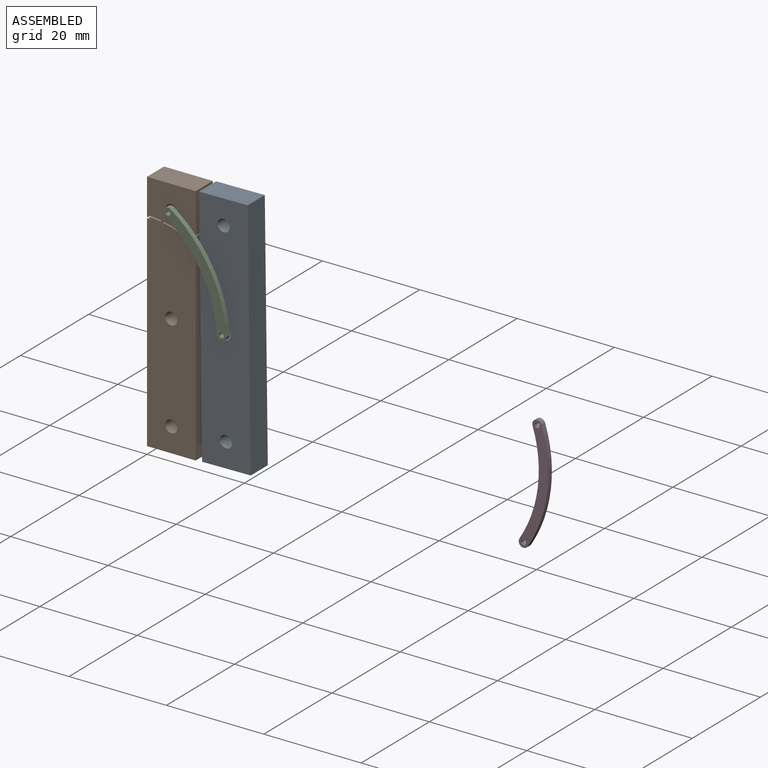
[diagram: assembled view]
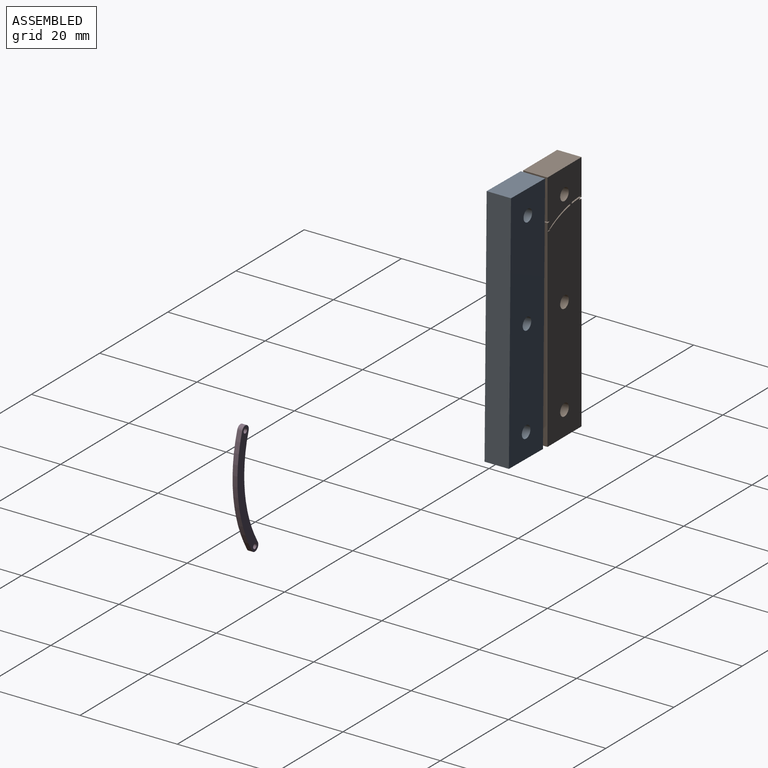
[diagram: assembled view, second angle]
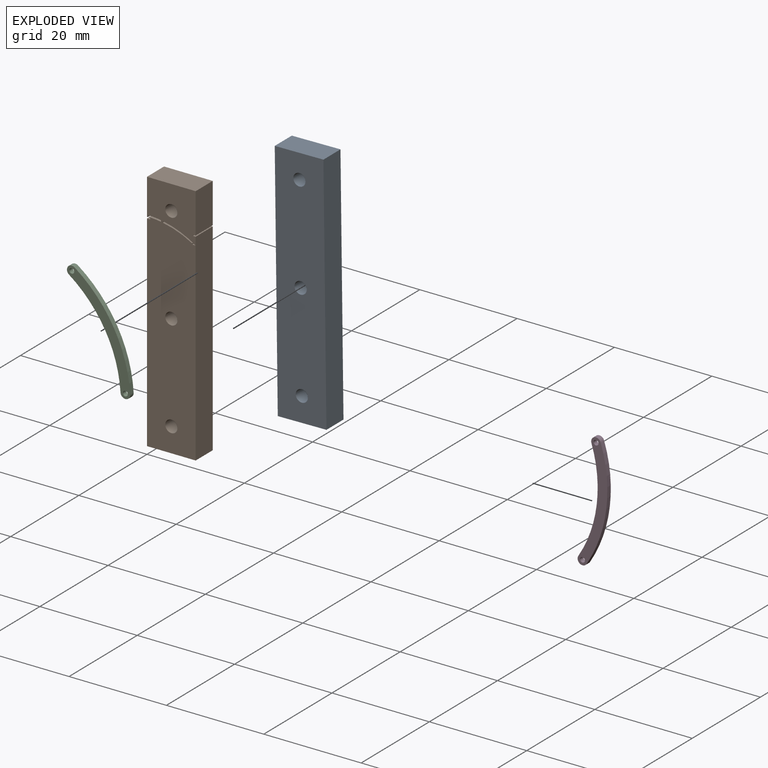
[diagram: exploded view]
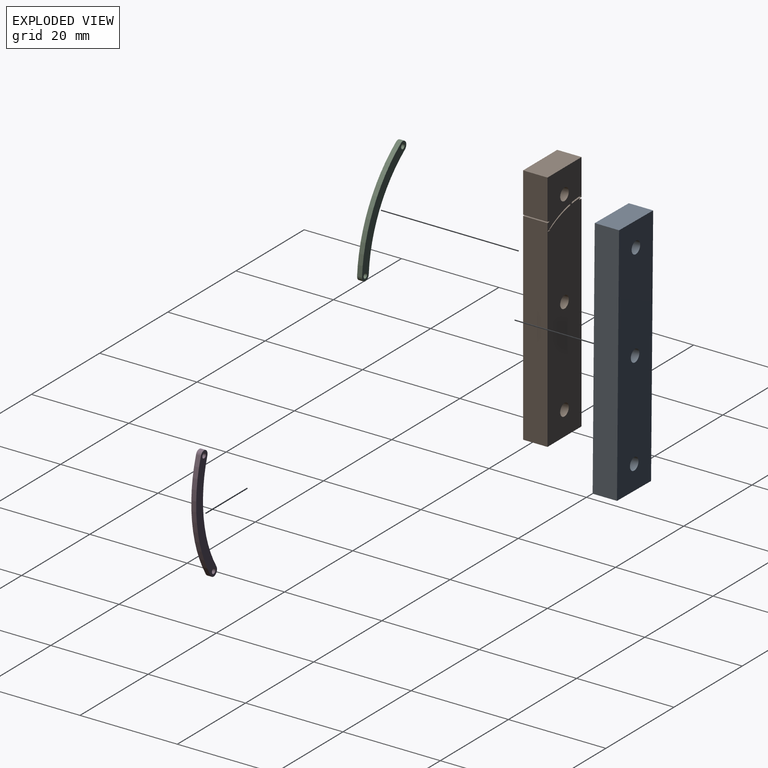
[diagram: exploded view, second angle]
ASSEMBLY  parts=4 mates=2
PART A: 9 faces, bbox 10x5x50 mm
  f0: plane 10x5mm, normal (0,0,-1), area 50mm2, adj f1,f3,f7,f8
  f1: plane 50x5mm, normal (1,0,0), area 250mm2, adj f0,f2,f7,f8
  f2: plane 10x5mm, normal (0,0,1), area 50mm2, adj f1,f3,f7,f8
  f3: plane 50x5mm, normal (-1,0,0), area 250mm2, adj f0,f2,f7,f8
  f4: cylinder r=1.25mm len=5mm, axis (0,-1,0), area 39.3mm2, adj f7,f8
  f5: cylinder r=1.25mm len=5mm, axis (0,-1,0), area 39.3mm2, adj f7,f8
  f6: cylinder r=1.25mm len=5mm, axis (0,-1,0), area 39.3mm2, adj f7,f8
  f7: plane 50x10mm, normal (0,1,0), area 485.3mm2, adj f0,f1,f2,f3,f4,f5,f6
  f8: plane 50x10mm, normal (0,-1,0), area 485.3mm2, adj f0,f1,f2,f3,f4,f5,f6
PART B: 28 faces, bbox 10x5x50 mm
  f0: plane 42.25x5mm, normal (-1,0,0), area 211.3mm2, adj f1,f2,f3,f21
  f1: plane 50x10mm, normal (0,1,0), area 482.3mm2, adj f0,f3,f4,f5,f6,f7,f8,f9
  f2: plane 50x10mm, normal (0,-1,0), area 482.3mm2, adj f0,f3,f4,f5,f6,f7,f8,f9
  f3: plane 10x5mm, normal (0,0,-1), area 50mm2, adj f0,f1,f2,f4
  f4: plane 41.54x5mm, normal (1,0,0), area 207.7mm2, adj f1,f2,f3,f5
  f5: plane 5x0.58mm, normal (0,0,1), area 2.9mm2, adj f1,f2,f4,f6
  f6: plane 5x0.23mm, normal (1,0,0), area 1.1mm2, adj f1,f2,f5,f7
  f7: plane 5x0.58mm, normal (0,0,-1), area 2.9mm2, adj f1,f2,f6,f8
  f8: plane 8.23x5mm, normal (1,0,0), area 41.1mm2, adj f1,f2,f7,f9
  f9: plane 10x5mm, normal (0,0,1), area 50mm2, adj f1,f2,f8,f12
  f10: cylinder r=1.25mm len=5mm, axis (0,-1,0), area 39.3mm2, adj f1,f2
  f11: cylinder r=1.25mm len=5mm, axis (0,-1,0), area 39.3mm2, adj f1,f2
  f12: plane 7.45x5mm, normal (-1,0,0), area 37.2mm2, adj f1,f2,f9,f20
  f13: cylinder r=1.25mm len=5mm, axis (0,-1,0), area 39.3mm2, adj f1,f2
  f14: cylinder r=18.4mm len=6.05mm, axis (0,-1,0), area 32.4mm2, adj f1,f2,f15,f18
  f15: plane 5x0.22mm, normal (1,0,0), area 1.1mm2, adj f1,f2,f14,f16
  f16: plane 5x0.71mm, normal (0,0,1), area 3.5mm2, adj f1,f2,f15,f17
  f17: cylinder r=17.93mm len=6.75mm, axis (0,-1,0), area 36.7mm2, adj f1,f2,f16,f18
  f18: plane 5x0.3mm, normal (1,0,0), area 1.5mm2, adj f1,f2,f14,f17
  f19: plane 5x0.39mm, normal (1,0,0), area 2mm2, adj f1,f2,f20,f27
  f20: plane 5x0.17mm, normal (0,0,-1), area 0.9mm2, adj f1,f2,f12,f19
  f21: plane 5x0.65mm, normal (0,0,1), area 3.3mm2, adj f0,f1,f2,f22
  f22: plane 5x0.3mm, normal (-1,0,0), area 1.5mm2, adj f1,f2,f21,f23
  f23: plane 5x0.27mm, normal (0,0,-1), area 1.3mm2, adj f1,f2,f22,f24
  f24: plane 5x0.08mm, normal (-0.98,0,-0.19), area 0.4mm2, adj f1,f2,f23,f25
  f25: cylinder r=18.4mm len=5mm, axis (0,-1,0), area 12.6mm2, adj f1,f2,f24,f26
  f26: plane 5x0.3mm, normal (-1,0,0), area 1.5mm2, adj f1,f2,f25,f27
  f27: cylinder r=17.93mm len=5mm, axis (0,-1,0), area 13.6mm2, adj f1,f2,f19,f26
PART C: 8 faces, bbox 6.1x1x24.5 mm
  f0: cylinder r=25.5mm len=21.65mm, axis (0,1,0), area 22.5mm2, adj f1,f4,f6,f7
  f1: cylinder r=1mm len=1.84mm, axis (0,1,0), area 3.1mm2, adj f0,f2,f6,f7
  f2: cylinder r=27.5mm len=23.35mm, axis (0,1,0), area 24.3mm2, adj f1,f4,f6,f7
  f3: cylinder r=0.5mm len=1mm, axis (0,1,0), area 3.1mm2, adj f6,f7
  f4: cylinder r=1mm len=1.95mm, axis (0,1,0), area 3.1mm2, adj f0,f2,f6,f7
  f5: cylinder r=0.5mm len=1mm, axis (0,1,0), area 3.1mm2, adj f6,f7
  f6: plane 24.5x6.12mm, normal (0,-1,0), area 48.4mm2, adj f0,f1,f2,f3,f4,f5
  f7: plane 24.5x6.12mm, normal (0,1,0), area 48.4mm2, adj f0,f1,f2,f3,f4,f5
PART D: 8 faces, bbox 6.1x1x24.5 mm
  f0: cylinder r=25.5mm len=21.65mm, axis (0,1,0), area 22.5mm2, adj f1,f4,f6,f7
  f1: cylinder r=1mm len=1.84mm, axis (0,1,0), area 3.1mm2, adj f0,f2,f6,f7
  f2: cylinder r=27.5mm len=23.35mm, axis (0,1,0), area 24.3mm2, adj f1,f4,f6,f7
  f3: cylinder r=0.5mm len=1mm, axis (0,1,0), area 3.1mm2, adj f6,f7
  f4: cylinder r=1mm len=1.95mm, axis (0,1,0), area 3.1mm2, adj f0,f2,f6,f7
  f5: cylinder r=0.5mm len=1mm, axis (0,1,0), area 3.1mm2, adj f6,f7
  f6: plane 24.5x6.12mm, normal (0,-1,0), area 48.4mm2, adj f0,f1,f2,f3,f4,f5
  f7: plane 24.5x6.12mm, normal (0,1,0), area 48.4mm2, adj f0,f1,f2,f3,f4,f5
PLACE A rot(axis=(0,-1,0),0.7deg) t=(-0.6,0,-0.03)mm
PLACE B at identity fixed
PLACE C rot(axis=(0,-1,0),36.1deg) t=(-40.73,5,-23.89)mm
PLACE D at identity
MATE revolute A.f4 <-> C.f1  axis (0,-1,0) through (16.01,0,25.18)mm
MATE revolute B.f13 <-> C.f3  axis (0,-1,0) through (5,0,45)mm
